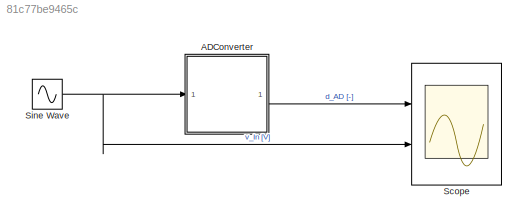
MODEL slx_81c77be9465c
KIND model
CONFIG AbsTol = auto
CONFIG EnableMultiTasking = off
CONFIG FixedStep = 0.05
CONFIG MaxStep = auto
CONFIG MinStep = auto
CONFIG RelTol = 1e-3
CONFIG SampleTimeConstraint = Unconstrained
CONFIG SolverName = ode4
CONFIG StartTime = 0.0
CONFIG StopTime = 20
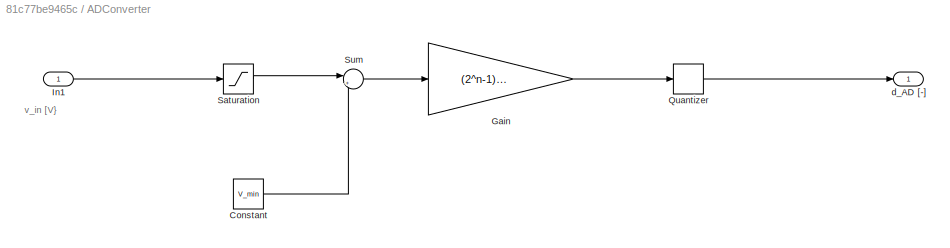
BLOCK [SubSystem] ADConverter
  Ports = [1, 1]
  RequestExecContextInheritance = off
BLOCK [Constant] ADConverter/Constant
  Value = V_min
BLOCK [Gain] ADConverter/Gain
  Gain = (2^n-1)/(V_max-V_min)
BLOCK [Inport] ADConverter/In1
BLOCK [Quantizer] ADConverter/Quantizer
BLOCK [Saturate] ADConverter/Saturation
  LowerLimit = V_min
  UpperLimit = V_max
BLOCK [Sum] ADConverter/Sum
  Inputs = |+-
  Ports = [2, 1]
BLOCK [Outport] ADConverter/d_AD [-]
BLOCK [Scope] Scope
  Floating = off
  NumInputPorts = 2
  Ports = [2]
  ScopeSpecificationString = Simulink.scopes.TimeScopeBlockCfg('CurrentConfiguration', extmgr.ConfigurationSet(extmgr.Configuration('Core','General UI',true),extmgr.Configuration('Core','Source UI',true),extmgr.Configuration('Sources','WiredSimulink',true),extmgr.Configuration('Visuals','Time Domain',true,'SerializedDisplays',{struct('MinYLimReal','-127.875','MaxYLimReal','1150.875','YLabelReal','','MinYLimMag','0','MaxYLimMa...<+1927ch>
BLOCK [Sin] Sine Wave
  Amplitude = 10
  Frequency = 2*pi*0.1
  Ports = [0, 1]
  SampleTime = 0
ANNOTATION ADConverter: v_in [V}
LINE ADConverter/Constant:1 -> ADConverter/Sum:2
LINE ADConverter/Gain:1 -> ADConverter/Quantizer:1
LINE ADConverter/In1:1 -> ADConverter/Saturation:1
LINE ADConverter/Quantizer:1 -> ADConverter/d_AD [-]:1
LINE ADConverter/Saturation:1 -> ADConverter/Sum:1
LINE ADConverter/Sum:1 -> ADConverter/Gain:1
LINE ADConverter:1 -> Scope:1
NET Sine Wave:1 -> ADConverter:1, Scope:2
note: NET lines group one-source signal fan-out (src -> all destinations, sorted); 1:1 wires keep LINE
